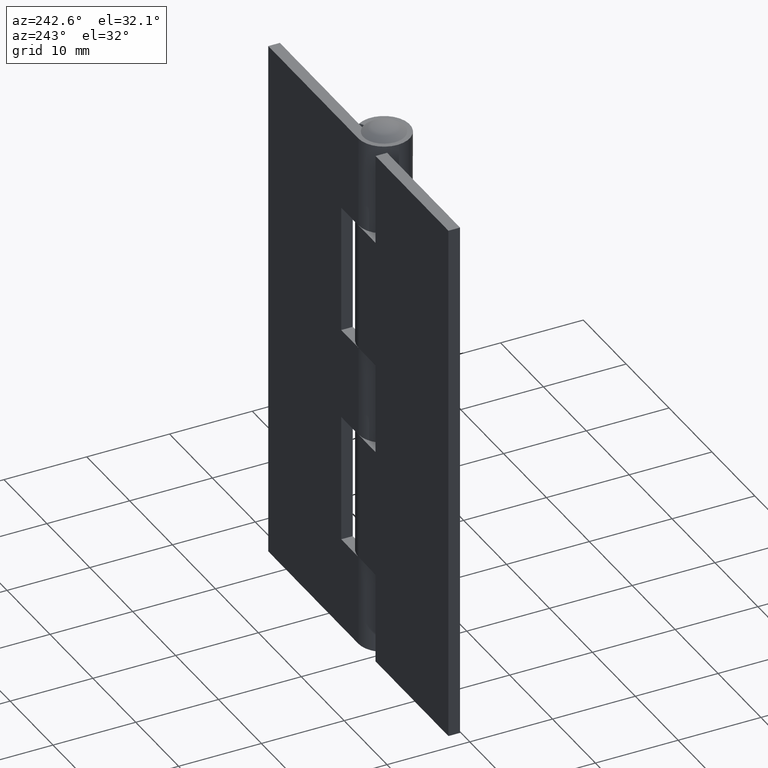
[diagram: clean part render]
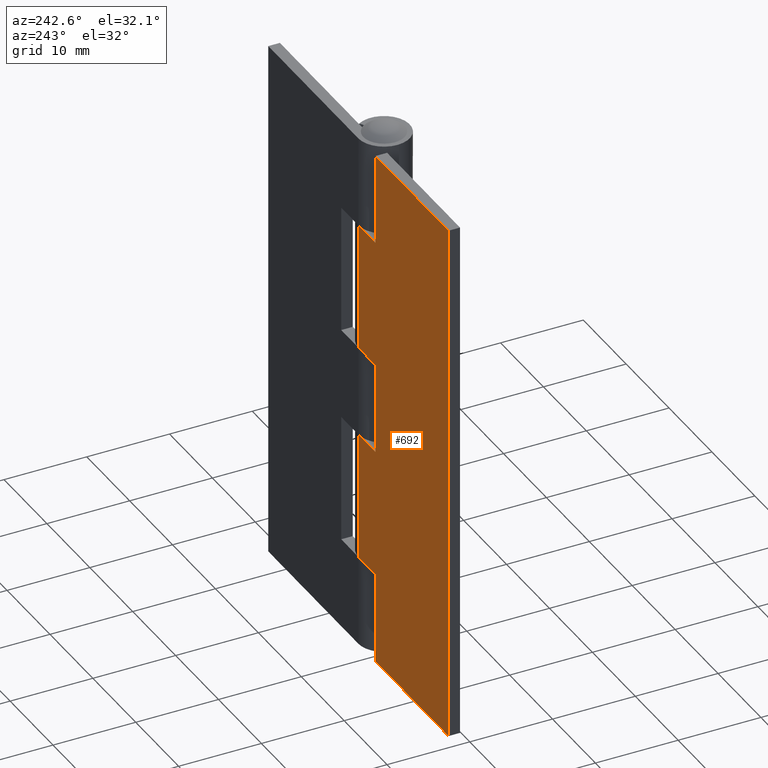
[diagram: same view with one face highlighted and labeled with its STEP entity id]
A machine part, auxiliary view. The second image highlights one B-rep face of the part: STEP entity #692.
In plain terms, the highlighted face is a freeform B-spline surface patch.
Its self-contained STEP definition (entity closure, byte-faithful):
#19=CARTESIAN_POINT('',(-4.000008000000000,3.099997999999935,53.000007999999802));
#20=VERTEX_POINT('',#19);
#26=CARTESIAN_POINT('',(-4.000008000000000,3.099997999999915,64.000007999999994));
#27=VERTEX_POINT('',#26);
#28=CARTESIAN_POINT('',(-4.000008000000000,3.099997999999935,53.000007999999802));
#29=CARTESIAN_POINT('',(-4.000008000000000,3.099997999999915,64.000007999999994));
#30=QUASI_UNIFORM_CURVE('',1,(#28,#29),.UNSPECIFIED.,.F.,.U.);
#31=EDGE_CURVE('',#20,#27,#30,.T.);
#89=CARTESIAN_POINT('',(0.003521362855412,3.099997999999915,53.000007999999802));
#90=VERTEX_POINT('',#89);
#122=CARTESIAN_POINT('',(0.003521362855412,3.099997999999915,53.000007999999802));
#123=CARTESIAN_POINT('',(-4.000008000000000,3.099997999999935,53.000007999999802));
#124=QUASI_UNIFORM_CURVE('',1,(#122,#123),.UNSPECIFIED.,.F.,.U.);
#125=EDGE_CURVE('',#90,#20,#124,.T.);
#138=CARTESIAN_POINT('',(-4.000008000000000,3.099997999999935,0.0));
#139=VERTEX_POINT('',#138);
#145=CARTESIAN_POINT('',(-4.000008000000000,3.099997999999935,11.0));
#146=VERTEX_POINT('',#145);
#147=CARTESIAN_POINT('',(-4.000008000000000,3.099997999999935,11.0));
#148=CARTESIAN_POINT('',(-4.000008000000000,3.099997999999935,0.0));
#149=QUASI_UNIFORM_CURVE('',1,(#147,#148),.UNSPECIFIED.,.F.,.U.);
#150=EDGE_CURVE('',#146,#139,#149,.T.);
#219=CARTESIAN_POINT('',(0.003521362855412,3.099997999999935,11.0));
#220=VERTEX_POINT('',#219);
#221=CARTESIAN_POINT('',(0.003521362855412,3.099997999999935,11.0));
#222=CARTESIAN_POINT('',(-4.000008000000000,3.099997999999935,11.0));
#223=QUASI_UNIFORM_CURVE('',1,(#221,#222),.UNSPECIFIED.,.F.,.U.);
#224=EDGE_CURVE('',#220,#146,#223,.T.);
#267=CARTESIAN_POINT('',(0.003521362855412,3.099997999999915,37.500000000000000));
#268=VERTEX_POINT('',#267);
#347=CARTESIAN_POINT('',(-4.000008000000000,3.099997999999935,37.500000000000000));
#348=VERTEX_POINT('',#347);
#354=CARTESIAN_POINT('',(-4.000008000000000,3.099997999999935,37.500000000000000));
#355=CARTESIAN_POINT('',(0.003521362855412,3.099997999999915,37.500000000000000));
#356=QUASI_UNIFORM_CURVE('',1,(#354,#355),.UNSPECIFIED.,.F.,.U.);
#357=EDGE_CURVE('',#348,#268,#356,.T.);
#374=CARTESIAN_POINT('',(-4.000008000000000,3.099997999999935,26.500000000000000));
#375=VERTEX_POINT('',#374);
#381=CARTESIAN_POINT('',(-4.000008000000000,3.099997999999935,26.500000000000000));
#382=CARTESIAN_POINT('',(-4.000008000000000,3.099997999999935,37.500000000000000));
#383=QUASI_UNIFORM_CURVE('',1,(#381,#382),.UNSPECIFIED.,.F.,.U.);
#384=EDGE_CURVE('',#375,#348,#383,.T.);
#397=CARTESIAN_POINT('',(0.003521362855412,3.099997999999915,26.500000000000000));
#398=VERTEX_POINT('',#397);
#431=CARTESIAN_POINT('',(0.003521362855412,3.099997999999915,26.500000000000000));
#432=CARTESIAN_POINT('',(-4.000008000000000,3.099997999999935,26.500000000000000));
#433=QUASI_UNIFORM_CURVE('',1,(#431,#432),.UNSPECIFIED.,.F.,.U.);
#434=EDGE_CURVE('',#398,#375,#433,.T.);
#496=CARTESIAN_POINT('',(-21.0,3.099997999999915,64.000007999999895));
#497=VERTEX_POINT('',#496);
#498=CARTESIAN_POINT('',(-21.0,3.099997999999915,64.000007999999895));
#499=CARTESIAN_POINT('',(-4.000008000000000,3.099997999999915,64.000007999999994));
#500=QUASI_UNIFORM_CURVE('',1,(#498,#499),.UNSPECIFIED.,.F.,.U.);
#501=EDGE_CURVE('',#497,#27,#500,.T.);
#589=CARTESIAN_POINT('',(0.003521362855412,3.099997999999915,53.000007999999802));
#590=CARTESIAN_POINT('',(0.003521362855412,3.099997999999915,37.500000000000000));
#591=QUASI_UNIFORM_CURVE('',1,(#589,#590),.UNSPECIFIED.,.F.,.U.);
#592=EDGE_CURVE('',#90,#268,#591,.T.);
#604=CARTESIAN_POINT('',(-21.0,3.099997999999915,-2.220446E-013));
#605=VERTEX_POINT('',#604);
#617=CARTESIAN_POINT('',(-21.0,3.099997999999915,64.000007999999895));
#618=CARTESIAN_POINT('',(-21.0,3.099997999999915,-2.220446E-013));
#619=QUASI_UNIFORM_CURVE('',1,(#617,#618),.UNSPECIFIED.,.F.,.U.);
#620=EDGE_CURVE('',#497,#605,#619,.T.);
#630=CARTESIAN_POINT('',(-21.0,3.099997999999915,-2.220446E-013));
#631=CARTESIAN_POINT('',(-4.000008000000000,3.099997999999935,0.0));
#632=QUASI_UNIFORM_CURVE('',1,(#630,#631),.UNSPECIFIED.,.F.,.U.);
#633=EDGE_CURVE('',#605,#139,#632,.T.);
#669=CARTESIAN_POINT('',(-22.049125851365730,3.099997999999915,-3.196800275555799));
#670=CARTESIAN_POINT('',(-22.049125851365730,3.099997999999915,67.196809992169563));
#671=CARTESIAN_POINT('',(1.052647777579484,3.099997999999915,-3.196800275555799));
#672=CARTESIAN_POINT('',(1.052647777579484,3.099997999999915,67.196809992169563));
#673=B_SPLINE_SURFACE_WITH_KNOTS('',1,1,((#669,#671),(#670,#672)),.UNSPECIFIED.,.F.,.F.,.U.,(2,2),(2,2),(0.0,70.393610267725364),(0.0,23.101773628945210),.UNSPECIFIED.);
#674=ORIENTED_EDGE('',*,*,#125,.F.);
#675=ORIENTED_EDGE('',*,*,#592,.T.);
#676=ORIENTED_EDGE('',*,*,#357,.F.);
#677=ORIENTED_EDGE('',*,*,#384,.F.);
#678=ORIENTED_EDGE('',*,*,#434,.F.);
#679=CARTESIAN_POINT('',(0.003521362855412,3.099997999999915,26.500000000000000));
#680=CARTESIAN_POINT('',(0.003521362855412,3.099997999999935,11.0));
#681=QUASI_UNIFORM_CURVE('',1,(#679,#680),.UNSPECIFIED.,.F.,.U.);
#682=EDGE_CURVE('',#398,#220,#681,.T.);
#683=ORIENTED_EDGE('',*,*,#682,.T.);
#684=ORIENTED_EDGE('',*,*,#224,.T.);
#685=ORIENTED_EDGE('',*,*,#150,.T.);
#686=ORIENTED_EDGE('',*,*,#633,.F.);
#687=ORIENTED_EDGE('',*,*,#620,.F.);
#688=ORIENTED_EDGE('',*,*,#501,.T.);
#689=ORIENTED_EDGE('',*,*,#31,.F.);
#690=EDGE_LOOP('',(#674,#675,#676,#677,#678,#683,#684,#685,#686,#687,#688,#689));
#691=FACE_OUTER_BOUND('',#690,.T.);
#692=ADVANCED_FACE('',(#691),#673,.T.);